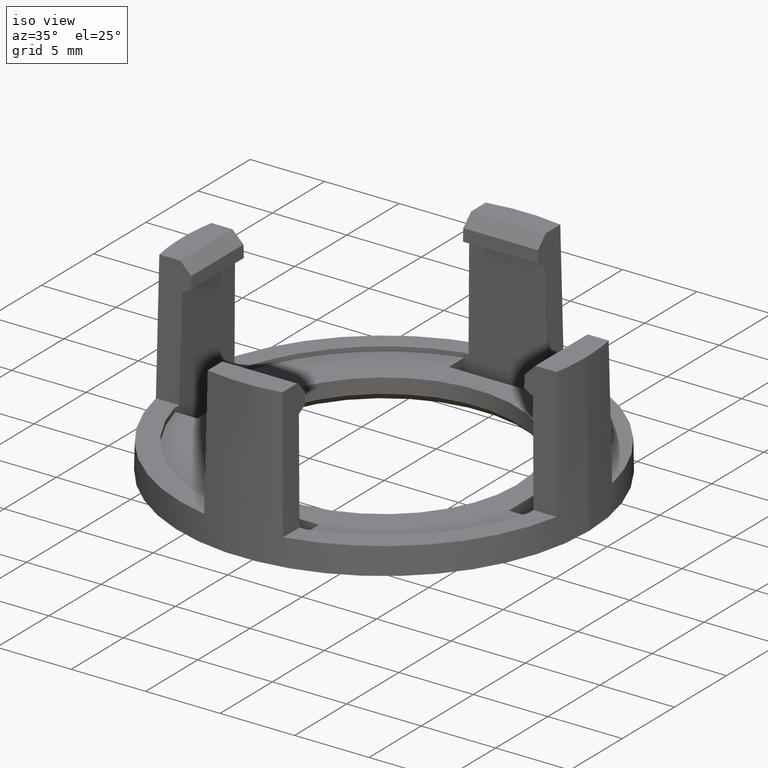
[diagram: clean part render]
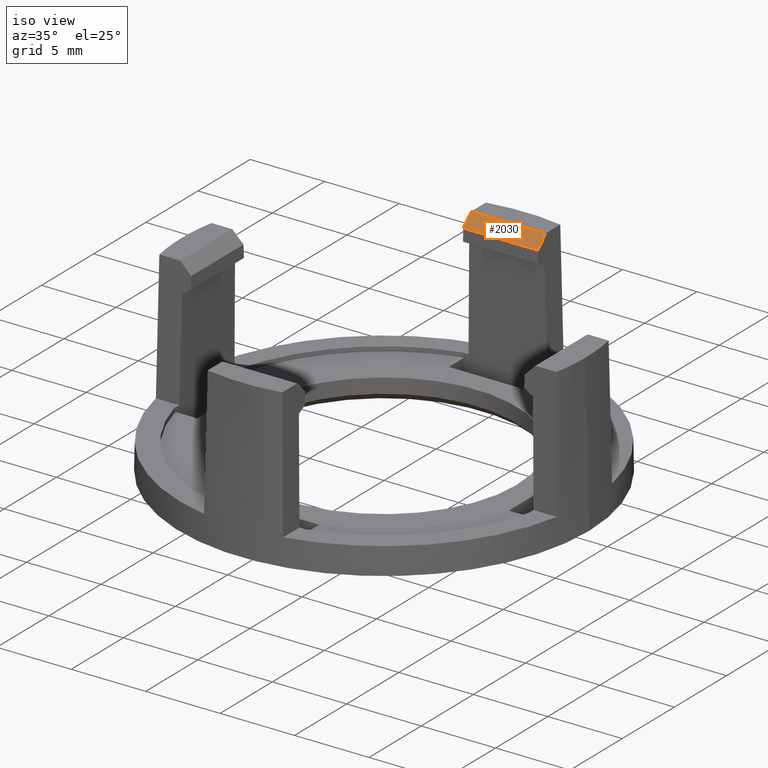
[diagram: same view with one face highlighted and labeled with its STEP entity id]
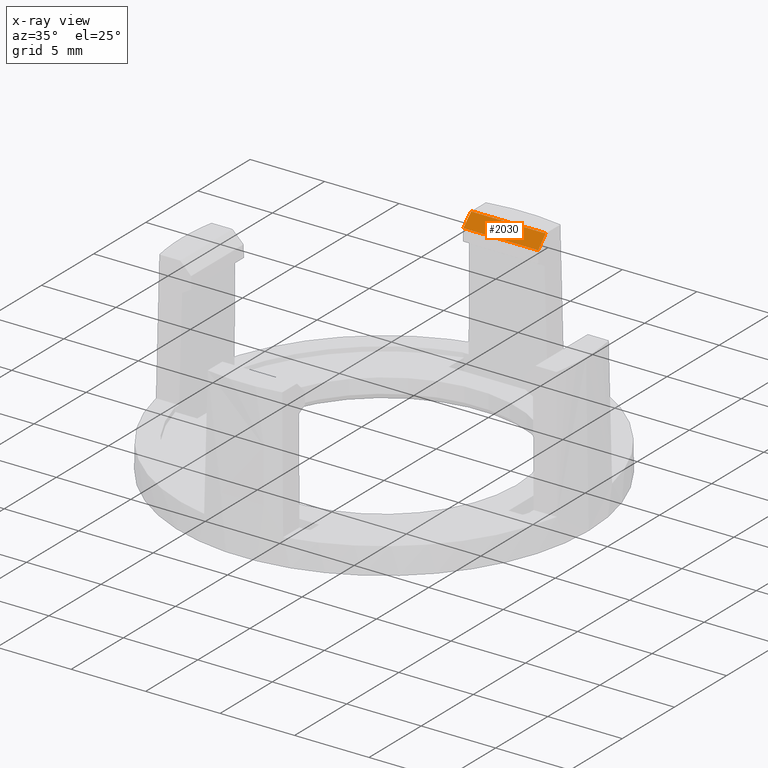
[diagram: x-ray of the same camera — body ghosted, the highlighted face saturated]
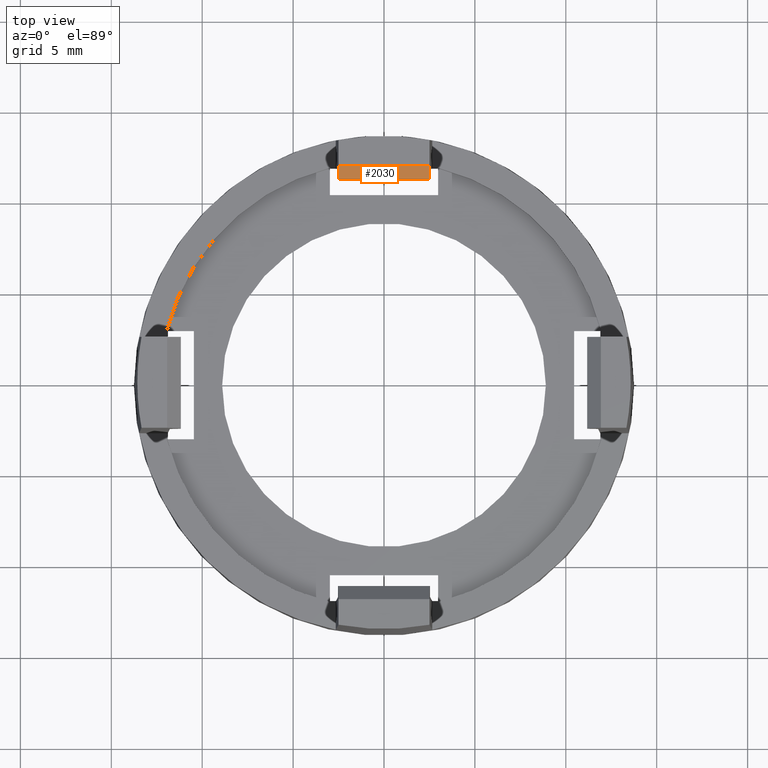
[diagram: same view with one face highlighted and labeled with its STEP entity id]
A machine part, iso view. The second image highlights one B-rep face of the part: STEP entity #2030.
The next image is the same camera in x-ray: the body ghosted, the highlighted face saturated — about 0% of this face is hidden behind the body in this view.
A second angle (top view) of the same face is appended — the face is thin or edge-on in the first view.
In plain terms, the highlighted planar face has unit normal (0, -0.7071, 0.7071).
Its self-contained STEP definition (entity closure, byte-faithful):
#453=DIRECTION('',(-1.E0,0.E0,0.E0));
#454=VECTOR('',#453,5.E0);
#455=CARTESIAN_POINT('',(2.5E0,1.192853721124E1,9.E0));
#456=LINE('',#455,#454);
#610=DIRECTION('',(1.234165475094E-2,7.070529271412E-1,7.070529271412E-1));
#611=VECTOR('',#610,1.040713711745E0);
#612=CARTESIAN_POINT('',(-2.512844129325E0,1.119269753504E1,8.264160323795E0));
#613=LINE('',#612,#611);
#617=DIRECTION('',(-1.234165475094E-2,7.070529271412E-1,7.070529271412E-1));
#618=VECTOR('',#617,1.040713711745E0);
#619=CARTESIAN_POINT('',(2.512844129325E0,1.119269753504E1,8.264160323795E0));
#620=LINE('',#619,#618);
#631=DIRECTION('',(1.E0,0.E0,0.E0));
#632=VECTOR('',#631,5.025688258650E0);
#633=CARTESIAN_POINT('',(-2.512844129325E0,1.119269753504E1,8.264160323795E0));
#634=LINE('',#633,#632);
#1590=CARTESIAN_POINT('',(2.512844129325E0,1.119269753504E1,8.264160323795E0));
#1591=VERTEX_POINT('',#1590);
#1602=CARTESIAN_POINT('',(-2.512844129325E0,1.119269753504E1,8.264160323795E0));
#1603=VERTEX_POINT('',#1602);
#1626=CARTESIAN_POINT('',(2.5E0,1.192853721124E1,9.E0));
#1627=VERTEX_POINT('',#1626);
#1639=CARTESIAN_POINT('',(-2.5E0,1.192853721124E1,9.E0));
#1640=VERTEX_POINT('',#1639);
#2017=CARTESIAN_POINT('',(3.E0,1.119269753504E1,8.264160323795E0));
#2018=DIRECTION('',(0.E0,-7.071067811865E-1,7.071067811865E-1));
#2019=DIRECTION('',(0.E0,7.071067811865E-1,7.071067811865E-1));
#2020=AXIS2_PLACEMENT_3D('',#2017,#2018,#2019);
#2021=PLANE('',#2020);
#2023=ORIENTED_EDGE('',*,*,#2022,.F.);
#2024=ORIENTED_EDGE('',*,*,#2003,.T.);
#2025=ORIENTED_EDGE('',*,*,#1915,.F.);
#2027=ORIENTED_EDGE('',*,*,#2026,.F.);
#2028=EDGE_LOOP('',(#2023,#2024,#2025,#2027));
#2029=FACE_OUTER_BOUND('',#2028,.F.);
#2030=ADVANCED_FACE('',(#2029),#2021,.T.);
#1915=EDGE_CURVE('',#1627,#1640,#456,.T.);
#2003=EDGE_CURVE('',#1603,#1640,#613,.T.);
#2022=EDGE_CURVE('',#1603,#1591,#634,.T.);
#2026=EDGE_CURVE('',#1591,#1627,#620,.T.);